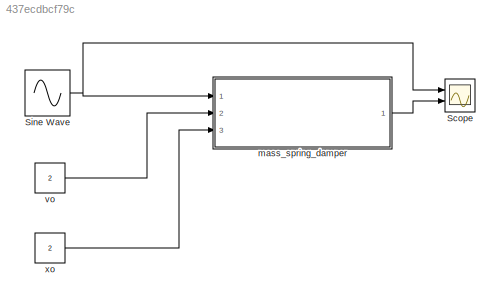
MODEL slx_437ecdbcf79c
KIND model
CONFIG AbsTol = auto
CONFIG EnableMultiTasking = off
CONFIG FixedStep = auto
CONFIG MaxStep = 0.001
CONFIG MinStep = auto
CONFIG RelTol = 1e-3
CONFIG SampleTimeConstraint = Unconstrained
CONFIG SolverName = VariableStepAuto
CONFIG StartTime = 0.0
CONFIG StopTime = 120
BLOCK [Scope] Scope
  Floating = off
  NumInputPorts = 2
  Ports = [2]
  ScopeSpecificationString = Simulink.scopes.TimeScopeBlockCfg('CurrentConfiguration', extmgr.ConfigurationSet(extmgr.Configuration('Core','General UI',true),extmgr.Configuration('Core','Source UI',true),extmgr.Configuration('Sources','WiredSimulink',true),extmgr.Configuration('Visuals','Time Domain',true,'SerializedDisplays',{struct('MinYLimReal','-2.52587','MaxYLimReal','2.73284','YLabelReal','','MinYLimMag','0.00000','MaxY...<+1405ch>
BLOCK [Sin] Sine Wave
  Amplitude = 2
  Ports = [0, 1]
  SampleTime = 0
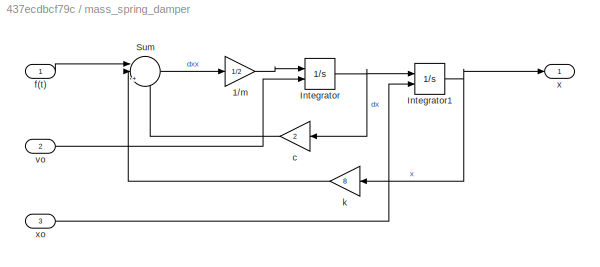
BLOCK [SubSystem] mass_spring_damper
  Ports = [3, 1]
  RequestExecContextInheritance = off
BLOCK [Gain] mass_spring_damper/1//m
  Gain = 1/2
BLOCK [Integrator] mass_spring_damper/Integrator
  InitialCondition = 2
  InitialConditionSource = external
  Ports = [2, 1]
BLOCK [Integrator] mass_spring_damper/Integrator1
  InitialCondition = 1
  InitialConditionSource = external
  Ports = [2, 1]
BLOCK [Sum] mass_spring_damper/Sum
  Inputs = ||+--
  Ports = [3, 1]
BLOCK [Gain] mass_spring_damper/c
  Gain = 2
BLOCK [Inport] mass_spring_damper/f(t)
BLOCK [Gain] mass_spring_damper/k
  Gain = 8
BLOCK [Inport] mass_spring_damper/vo
  Port = 2
BLOCK [Outport] mass_spring_damper/x
BLOCK [Inport] mass_spring_damper/xo
  Port = 3
BLOCK [Constant] vo
  Value = 2
BLOCK [Constant] xo
  Value = 2
NET Sine Wave:1 -> Scope:1, mass_spring_damper:1
LINE mass_spring_damper/1//m:1 -> mass_spring_damper/Integrator:1
NET mass_spring_damper/Integrator1:1 -> mass_spring_damper/k:1, mass_spring_damper/x:1
NET mass_spring_damper/Integrator:1 -> mass_spring_damper/Integrator1:1, mass_spring_damper/c:1
LINE mass_spring_damper/Sum:1 -> mass_spring_damper/1//m:1
LINE mass_spring_damper/c:1 -> mass_spring_damper/Sum:3
LINE mass_spring_damper/f(t):1 -> mass_spring_damper/Sum:1
LINE mass_spring_damper/k:1 -> mass_spring_damper/Sum:2
LINE mass_spring_damper/vo:1 -> mass_spring_damper/Integrator:2
LINE mass_spring_damper/xo:1 -> mass_spring_damper/Integrator1:2
LINE mass_spring_damper:1 -> Scope:2
LINE vo:1 -> mass_spring_damper:2
LINE xo:1 -> mass_spring_damper:3
note: NET lines group one-source signal fan-out (src -> all destinations, sorted); 1:1 wires keep LINE
